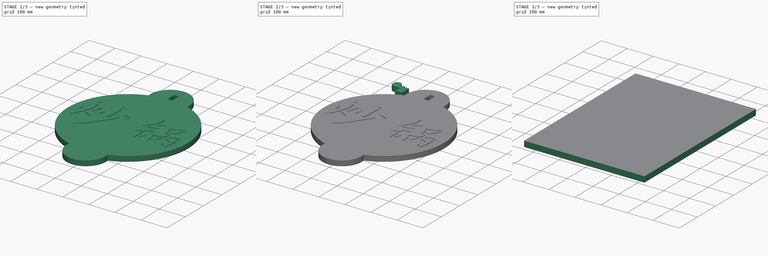
[diagram: build sequence overview — one tinted view per stage of 3, left to right]
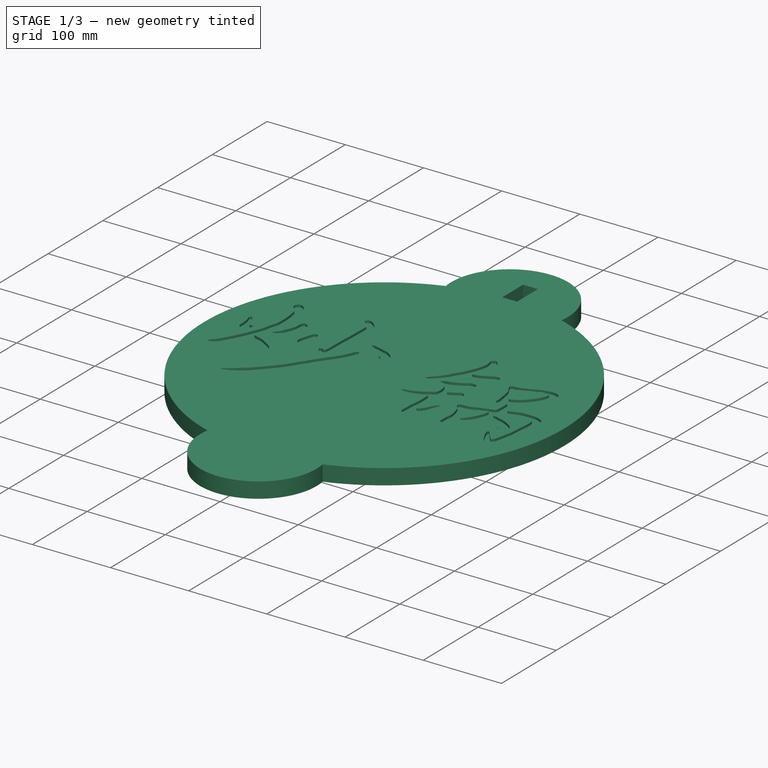
[diagram: stage 1 of 3 — iso view after this stage's code; geometry added in this stage tinted green]
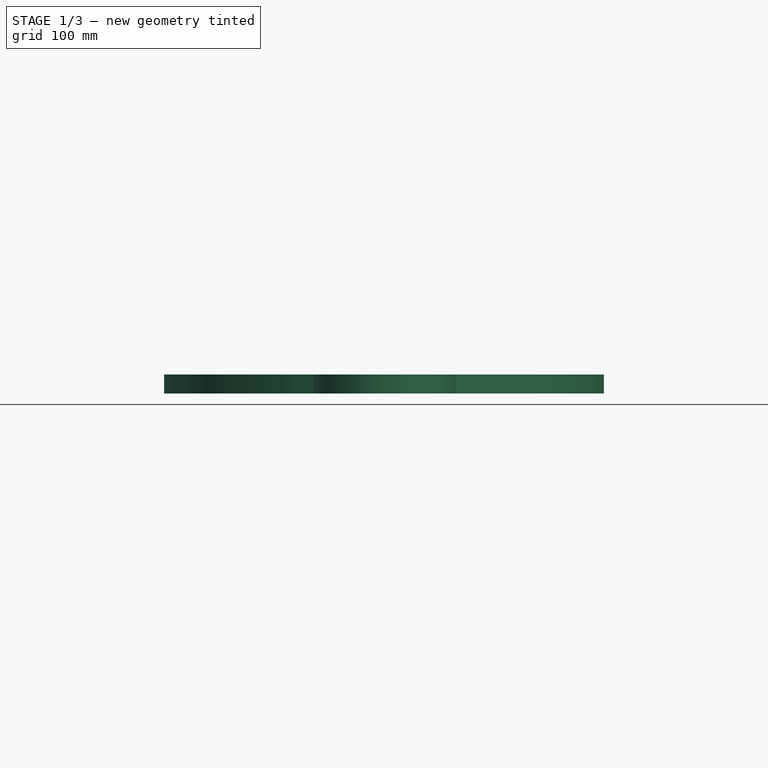
[diagram: stage 1 of 3 — front view after this stage's code; geometry added in this stage tinted green]
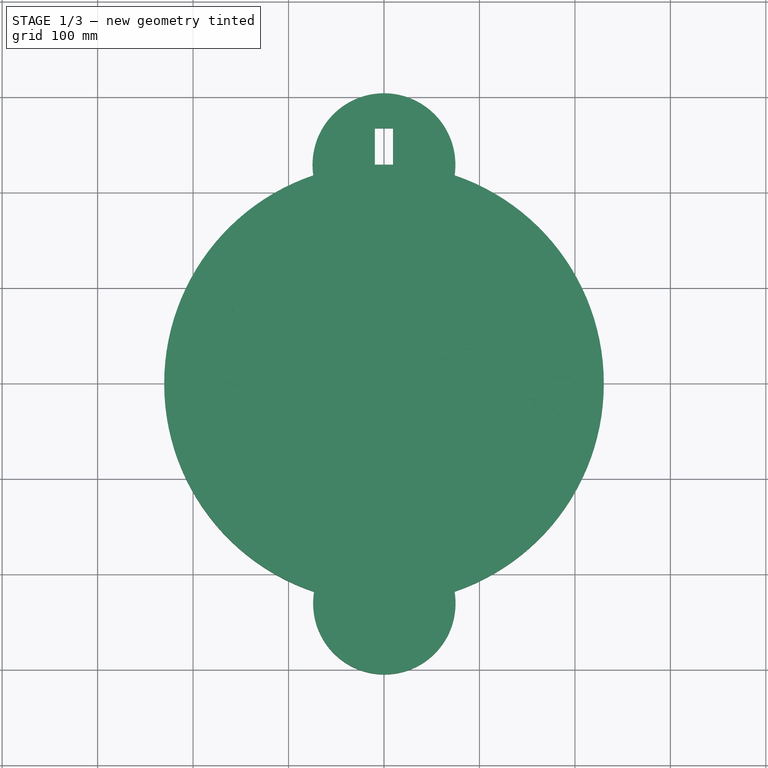
[diagram: stage 1 of 3 — top view after this stage's code; geometry added in this stage tinted green]
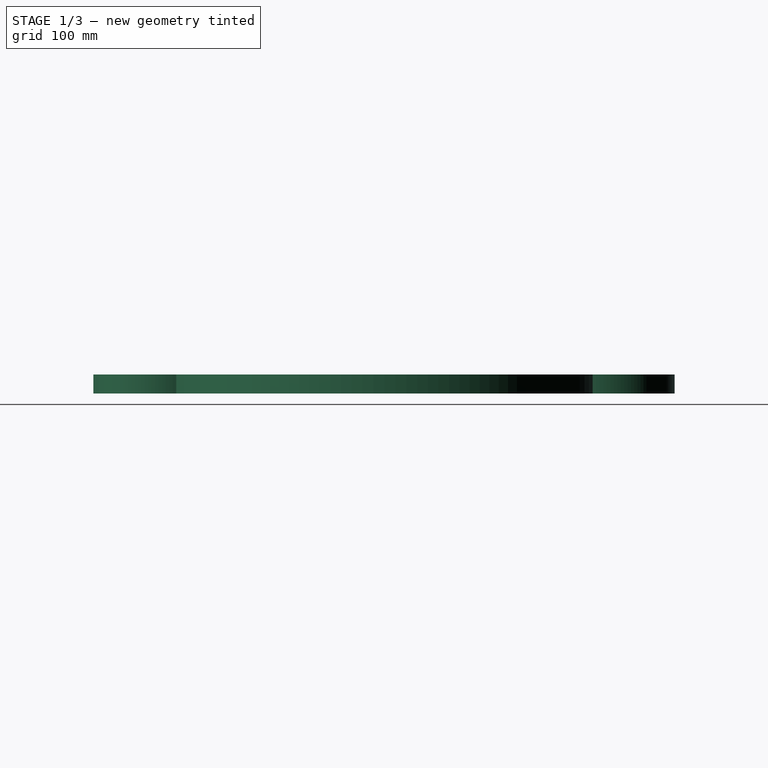
[diagram: stage 1 of 3 — right view after this stage's code; geometry added in this stage tinted green]
FCSTD DOCUMENT  (FreeCAD 0.17R13519 (Git))
Label: wok-holder
License: All rights reserved
LicenseURL: http://en.wikipedia.org/wiki/All_rights_reserved
objects: Path::FeaturePython×9, Part::FeaturePython×4, Sketcher::SketchObject×2, PartDesign::Body×2, App::Part×2, PartDesign::Pad×2, App::FeaturePython×2, Path::FeatureCompoundPython×2, Part::Part2DObjectPython×1, Part::Extrusion×1, Part::Cut×1
note: 19 computed .brp shape members not serialized (recipe doc carries the construction recipe); baked Part::Feature solids carry a one-line shape summary decoded from their .brp

FEATURE [Sketcher::SketchObject] Sketch002  label="Sketch-Body"
  MapMode = 5
  Support = -> [XY_Plane001]
  sketch-geometry (9):
    g0: ArcOfCircle CenterX=0 CenterY=0 CenterZ=0 NormalX=0 NormalY=0 NormalZ=1 AngleXU=0 Radius=230.277 StartAngle=1.89815 EndAngle=4.38855
    g1: LineSegment StartX=-9.56391 StartY=267.272 StartZ=0 EndX=9.48609 EndY=267.272 EndZ=0
    g2: LineSegment StartX=9.48609 StartY=267.272 StartZ=0 EndX=9.48609 EndY=229.172 EndZ=0
    g3: LineSegment StartX=9.48609 StartY=229.172 StartZ=0 EndX=-9.56391 EndY=229.172 EndZ=0
    g4: LineSegment StartX=-9.56391 StartY=229.172 StartZ=0 EndX=-9.56391 EndY=267.272 EndZ=0
    g5: ArcOfCircle CenterX=-0.0389107 CenterY=229.172 CenterZ=0 NormalX=0 NormalY=0 NormalZ=1 AngleXU=0 Radius=74.8347 StartAngle=6.13433 EndAngle=9.57397
    g6: ArcOfCircle CenterX=0.352648 CenterY=-230.277 CenterZ=0 NormalX=0 NormalY=0 NormalZ=1 AngleXU=0 Radius=74.5948 StartAngle=2.98044 EndAngle=6.4474
    g7: ArcOfCircle CenterX=0 CenterY=0 CenterZ=0 NormalX=0 NormalY=0 NormalZ=1 AngleXU=0 Radius=230.277 StartAngle=5.03929 EndAngle=7.52697
    g8: LineSegment StartX=-74.0423 StartY=218.049 StartZ=0 EndX=-74.0423 EndY=218.049 EndZ=0
  constraints (19):
    c: Coincident(g0,g-1)
    c: Coincident(g1,g2)
    c: Coincident(g2,g3)
    c: Coincident(g3,g4)
    c: Coincident(g4,g1)
    c: Horizontal(g1)
    c: Horizontal(g3)
    c: Vertical(g2)
    c: Vertical(g4)
    c: DistanceX(g1,g1) = 19.05
    c: DistanceY(g2,g2) = 38.1
    c: Symmetric(g3,g3,g5)
    c: PointOnObject(g0,g5)
    c: Equal(g0,g7)
    c: Coincident(g0,g7)
    c: Coincident(g6,g7)
    c: Coincident(g5,g7)
    c: Coincident(g8,g0)
    c: Coincident(g5,g8)
FEATURE [Part::Part2DObjectPython] ShapeString  label="ShapeString-炒锅"  # Draft 2D object (typed FeaturePython)
  FontFile = <userpath>/Downloads/Bei An Pen Calligraphy Chinese Font – Simplified Chinese Fonts.ttf
  Placement = pos=(-225,-60,0) rot=(0,0,1;0rad)
  Size = 85
  String = 炒锅
  Tracking = 0
FEATURE [Part::Extrusion] Extrude
  Base = -> ShapeString
  Dir = (0,0,1)
  DirMode = 0
  FaceMakerClass = Part::FaceMakerBullseye
  LengthFwd = -3
  LengthRev = 0
  Solid = true
  Symmetric = false
FEATURE [PartDesign::Body] Body
  Origin = -> Origin001
FEATURE [App::Part] Part  label="Part-Body"
  Group = -> [Body]
  License = CC BY 3.0
  LicenseURL = http://creativecommons.org/licenses/by/3.0/
  Origin = -> Origin
FEATURE [Sketcher::SketchObject] Sketch003  label="Sketch-Hook"
  MapMode = 5
  Support = -> [XY_Plane003]
  sketch-geometry (14):
    g0: LineSegment StartX=-111.417 StartY=268.389 StartZ=0 EndX=-92.3673 EndY=268.389 EndZ=0
    g1: LineSegment StartX=-92.3673 StartY=268.389 StartZ=0 EndX=-92.3673 EndY=230.289 EndZ=0
    g2: LineSegment StartX=-92.3673 StartY=230.289 StartZ=0 EndX=-111.417 EndY=230.289 EndZ=0
    g3: LineSegment StartX=-111.417 StartY=230.289 StartZ=0 EndX=-111.417 EndY=225.245 EndZ=0
    g4: LineSegment StartX=-111.417 StartY=268.389 StartZ=0 EndX=-111.417 EndY=273.354 EndZ=0
    g5: LineSegment StartX=-111.417 StartY=273.354 StartZ=0 EndX=-116.392 EndY=273.354 EndZ=0
    g6: ArcOfCircle CenterX=-121.386 CenterY=273.494 CenterZ=0 NormalX=0 NormalY=0 NormalZ=1 AngleXU=0 Radius=4.99599 StartAngle=3.17049 EndAngle=6.25525
    g7: ArcOfCircle CenterX=-140.714 CenterY=273.657 CenterZ=0 NormalX=0 NormalY=0 NormalZ=1 AngleXU=0 Radius=14.337 StartAngle=6.26174 EndAngle=9.42871
    g8: LineSegment StartX=-155.051 StartY=273.601 StartZ=0 EndX=-155.051 EndY=265.549 EndZ=0
    g9: LineSegment StartX=-111.417 StartY=225.245 StartZ=0 EndX=-116.438 EndY=225.245 EndZ=0
    g10: LineSegment StartX=-116.438 StartY=225.245 StartZ=0 EndX=-116.438 EndY=248.527 EndZ=0
    g11: LineSegment StartX=-125.028 StartY=256.105 StartZ=0 EndX=-142.565 EndY=256.105 EndZ=0
    g12: ArcOfCircle CenterX=-143.148 CenterY=268.309 CenterZ=0 NormalX=0 NormalY=0 NormalZ=1 AngleXU=0 Radius=12.2183 StartAngle=3.36946 EndAngle=4.76019
    g13: ArcOfCircle CenterX=-125.563 CenterY=246.841 CenterZ=0 NormalX=0 NormalY=0 NormalZ=1 AngleXU=0 Radius=9.27931 StartAngle=0.182722 EndAngle=1.51316
  constraints (24):
    c: Coincident(g0,g1)
    c: Coincident(g1,g2)
    c: Horizontal(g0)
    c: Horizontal(g2)
    c: Vertical(g1)
    c: Coincident(g3,g2)
    c: Vertical(g3)
    c: Coincident(g4,g0)
    c: Vertical(g4)
    c: Coincident(g5,g4)
    c: Horizontal(g5)
    c: Coincident(g6,g5)
    c: Coincident(g7,g6)
    c: Coincident(g8,g7)
    c: Vertical(g8)
    c: Coincident(g9,g3)
    c: Horizontal(g9)
    c: Coincident(g10,g9)
    c: Vertical(g10)
    c: Horizontal(g11)
    c: Coincident(g12,g8)
    c: Coincident(g12,g11)
    c: Coincident(g13,g11)
    c: Coincident(g13,g10)
FEATURE [PartDesign::Pad] Pad
  Length = 20
  Length2 = 100
  Profile = -> Sketch002
  Reversed = true
  Type = 0
FEATURE [PartDesign::Body] Body001
  Group = -> [Sketch003,Pad001]
  Origin = -> Origin003
  Tip = -> Pad001
FEATURE [App::Part] Part001  label="Part-Hook"
  Group = -> [Body001]
  License = CC BY 3.0
  LicenseURL = http://creativecommons.org/licenses/by/3.0/
  Origin = -> Origin002
FEATURE [Part::Cut] Cut  label="Body Cut"
  Base = -> Pad
  Tool = -> Extrude
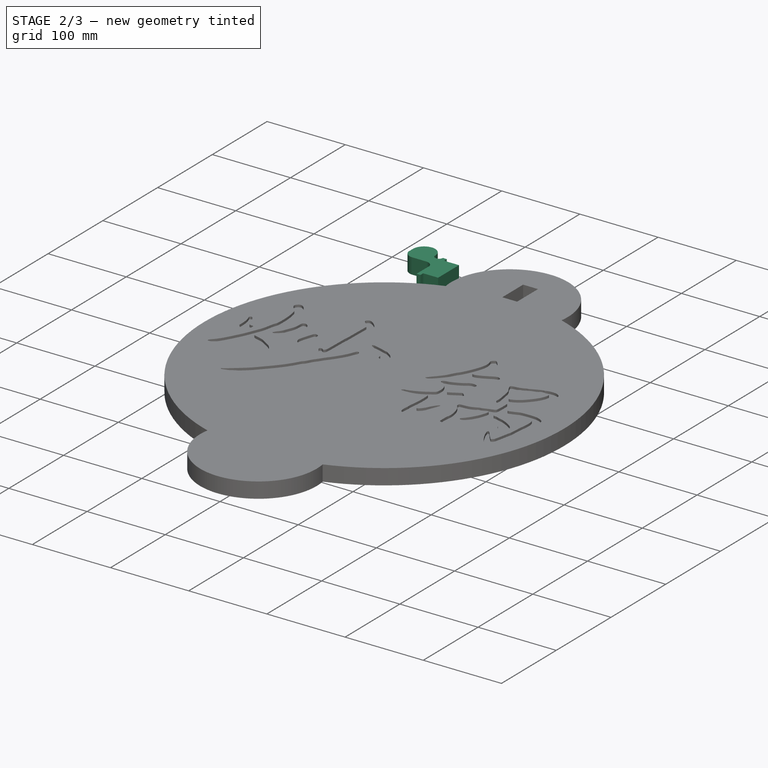
[diagram: stage 2 of 3 — iso view after this stage's code; geometry added in this stage tinted green]
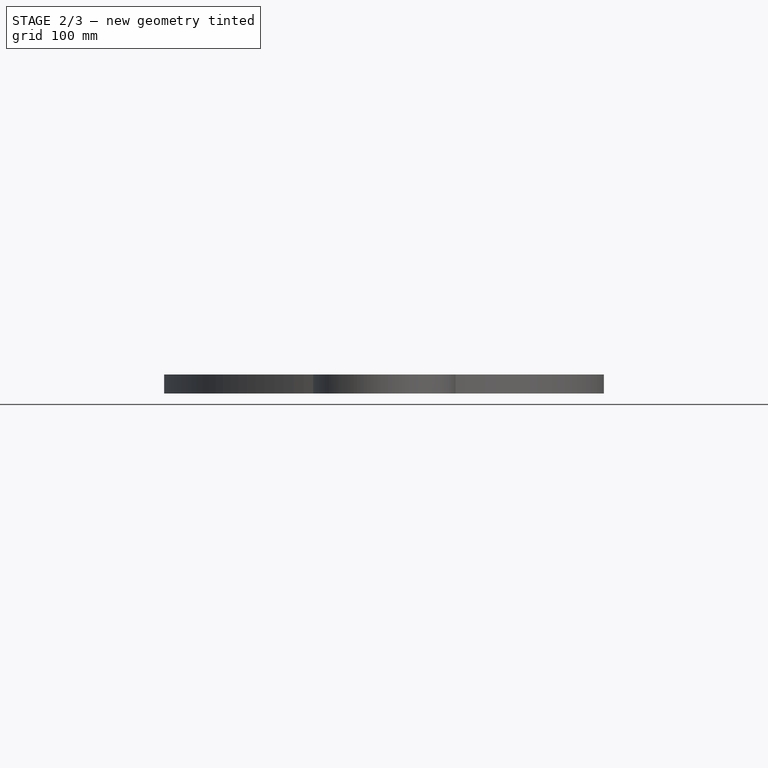
[diagram: stage 2 of 3 — front view after this stage's code; geometry added in this stage tinted green]
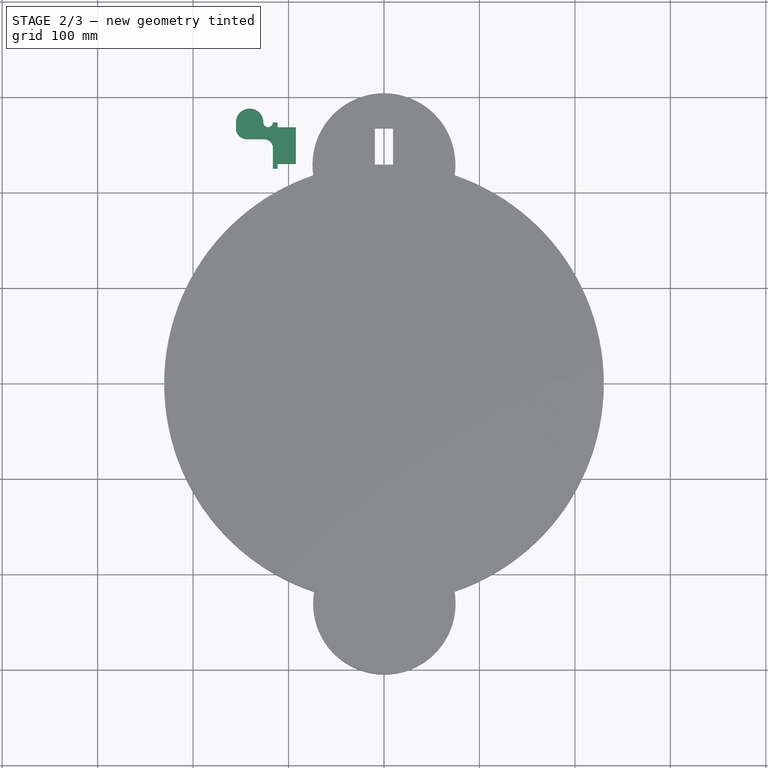
[diagram: stage 2 of 3 — top view after this stage's code; geometry added in this stage tinted green]
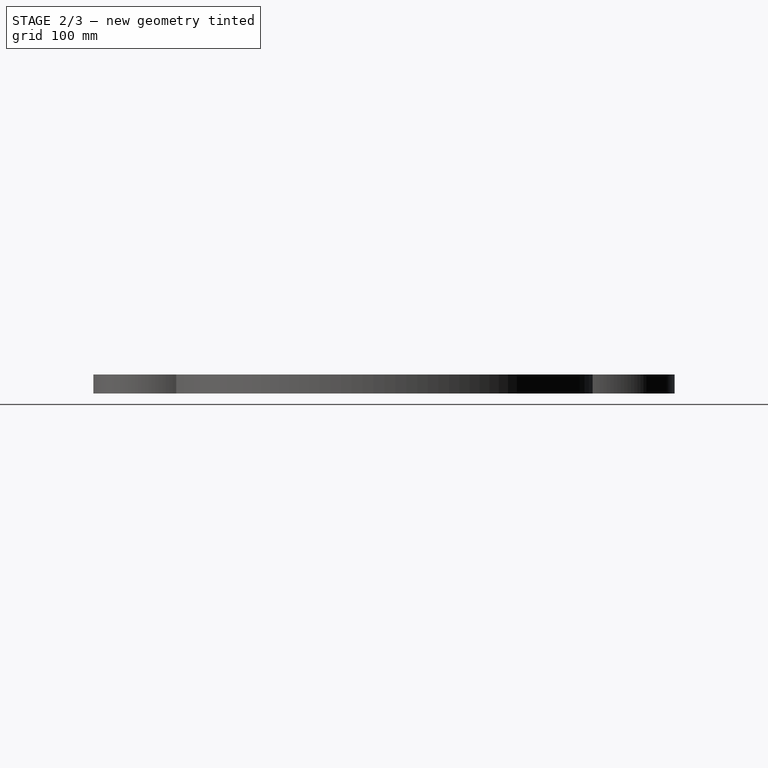
[diagram: stage 2 of 3 — right view after this stage's code; geometry added in this stage tinted green]
FEATURE [PartDesign::Pad] Pad001
  Length = 20
  Length2 = 100
  Profile = -> Sketch003
  Reversed = true
  Type = 0
FEATURE [App::FeaturePython] SetupSheet001  # Path/CAM operation (typed FeaturePython)
  ClearanceHeightExpression = StartDepth+SetupSheet001.ClearanceHeightOffset
  ClearanceHeightOffset = 5
  FinalDepthExpression = OpFinalDepth
  HorizRapid = 150
  SafeHeightExpression = StartDepth+SetupSheet001.SafeHeightOffset
  SafeHeightOffset = 3
  StartDepthExpression = OpStartDepth
  StepDownExpression = OpToolDiameter
  VertRapid = 150
FEATURE [Part::FeaturePython] Clone001  label="Base-Body Cut"  # Draft clone (typed FeaturePython)
  AttacherType = Attacher::AttachEngine3D
  Fuse = false
  Objects = -> [Cut]
  PathResource = Base
  Scale = (1,1,1)
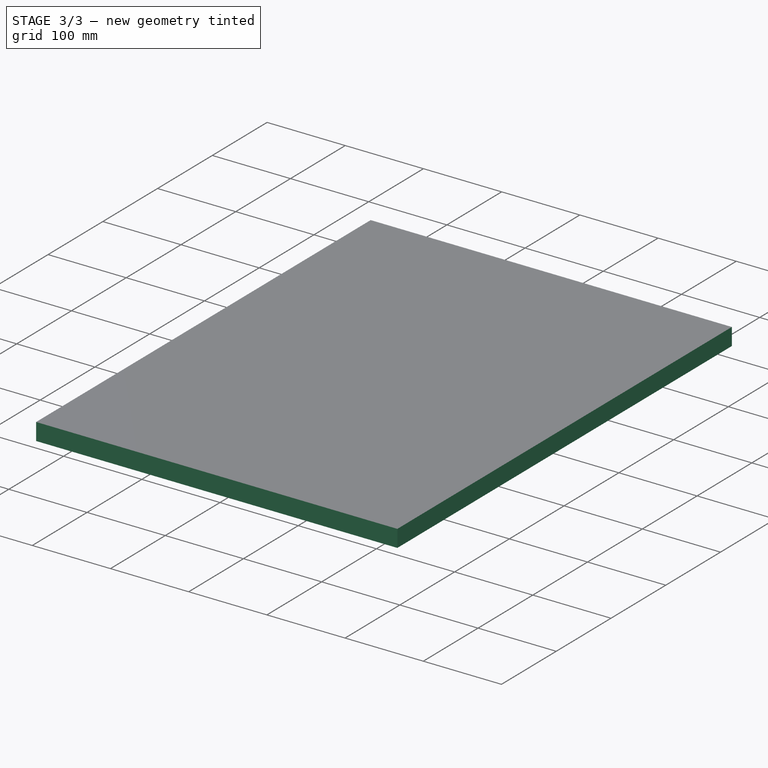
[diagram: stage 3 of 3 — iso view after this stage's code; geometry added in this stage tinted green]
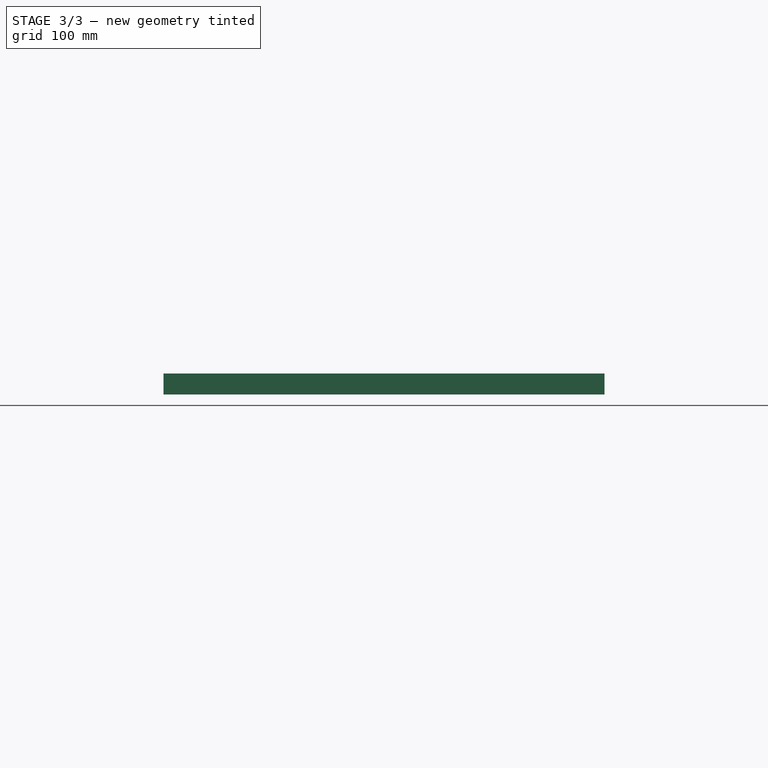
[diagram: stage 3 of 3 — front view after this stage's code; geometry added in this stage tinted green]
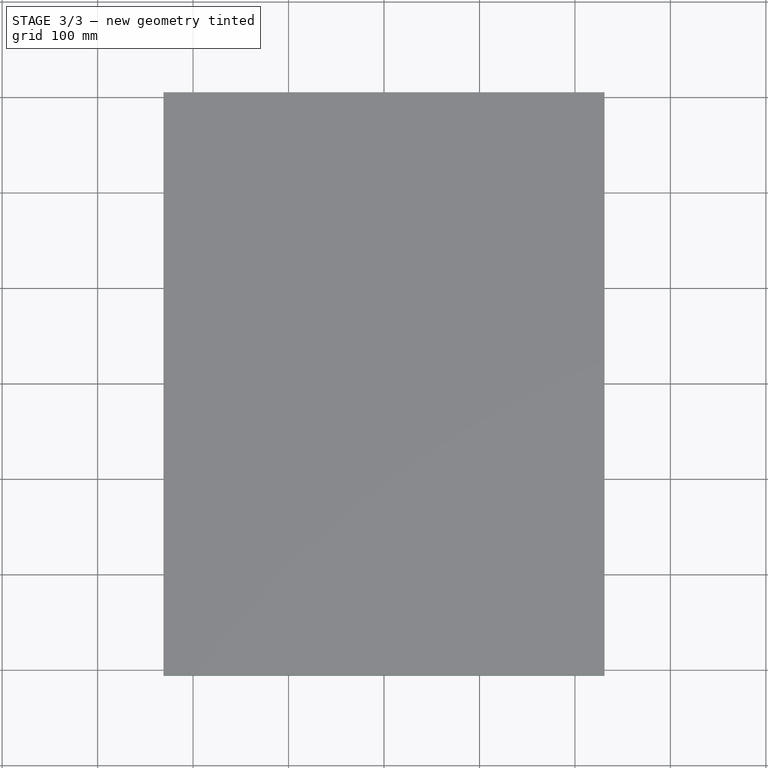
[diagram: stage 3 of 3 — top view after this stage's code; geometry added in this stage tinted green]
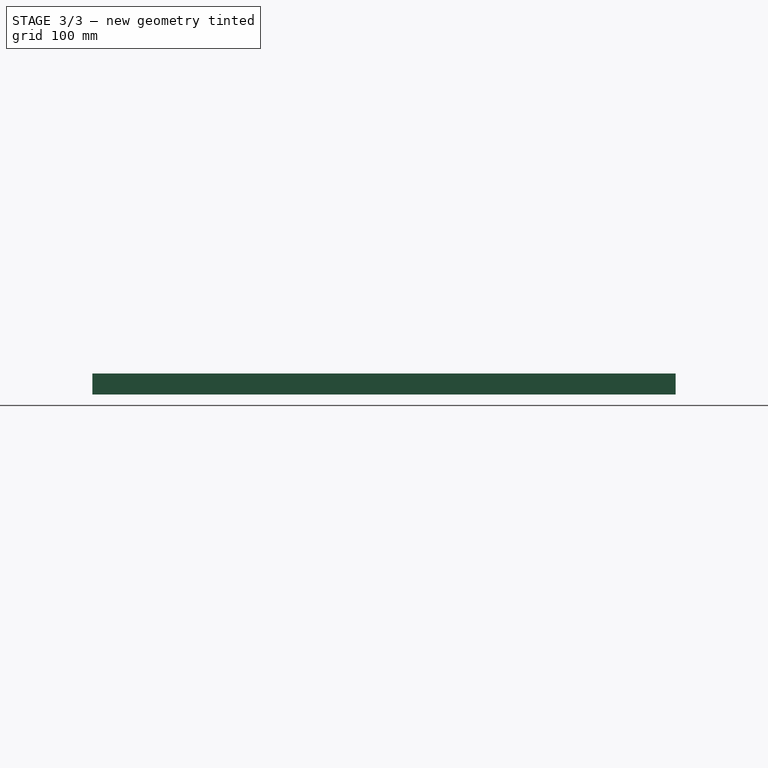
[diagram: stage 3 of 3 — right view after this stage's code; geometry added in this stage tinted green]
FEATURE [Part::FeaturePython] Stock001  # WARN: FeaturePython — macro-defined, semantics opaque (R4)
  Base = -> Cut
  ExtXneg = 1
  ExtXpos = 1
  ExtYneg = 1
  ExtYpos = 1
  ExtZneg = 1
  ExtZpos = 1
  StockType = FromBase
FEATURE [Path::FeaturePython] T1__1_4__Router_Bit001  label="T1: 1/4" Router Bit001"  # Path/CAM operation (typed FeaturePython)
  HorizFeed = 100
  HorizRapid = 150
  SpindleDir = 0
  SpindleSpeed = 1800
  ToolNumber = 1
  VertFeed = 100
  VertRapid = 150
  expr: HorizRapid = SetupSheet001.HorizRapid
  expr: VertRapid = SetupSheet001.VertRapid
FEATURE [Path::FeaturePython] Contour001  # Path/CAM operation (typed FeaturePython)
  Active = true
  AreaParams:
    OpenMode = 0
    Angle = 45.0
    MinArcPoints = 4
    Coplanar = 2
    Tolerance = 1e-07
    CleanDistance = 0.0
    PocketExtraOffset = 0.0
    RoundPrecision = 0.0
    AngleShift = 0.0
    SubjectFill = 0
    PocketMode = 0
    Simplify = False
    SectionTolerance = 1e-06
    MaxArcPoints = 100
    Offset = 3.175
    Accuracy = 0.01
    PocketStepover = 0.0
    ClipFill = 0
    ToolRadius = 1.0
    Outline = False
    ClipperScale = 10000000.0
    FromCenter = False
    Explode = False
    EndType = 0
    Shift = 0.0
    ExtraPass = 0
    Project = False
    JoinType = 0
    Thicken = False
    Stepdown = 1.0
    SectionMode = 2
    MiterLimit = 2.0
    Deflection = 0.01
    Reorient = True
    FitArcs = True
    SectionCount = -1
    SectionOffset = 0.0
    Stepover = 0.0
    Unit = 1.0
    Fill = 0
  ClearanceHeight = 6
  Direction = 0
  FinalDepth = -21
  JoinType = 0
  MiterLimit = 0.1
  OffsetExtra = 0
  OpFinalDepth = -21
  OpStartDepth = 1
  OpToolDiameter = 6.35
  PathParams = {'resume_height': 4.0, 'feedrate': 100.0, 'verbose': True, 'orientation': 1, 'return_end': True, 'preamble': False, 'retraction': 6.0, 'feedrate_v': 100.0}
  SafeHeight = 4
  Side = 0
  StartDepth = 1
  StartPoint = (0,0,0)
  StepDown = 6.35
  ToolController = -> T1__1_4__Router_Bit001
  UseComp = true
  UseStartPoint = false
  expr: ClearanceHeight = StartDepth + SetupSheet001.ClearanceHeightOffset
  expr: SafeHeight = StartDepth + SetupSheet001.SafeHeightOffset
  expr: StepDown = OpToolDiameter
  expr: FinalDepth = OpFinalDepth
  expr: StartDepth = OpStartDepth
FEATURE [Part::FeaturePython] Stock  # WARN: FeaturePython — macro-defined, semantics opaque (R4)
  Base = -> Part001
  ExtXneg = 1
  ExtXpos = 1
  ExtYneg = 1
  ExtYpos = 1
  ExtZneg = 1
  ExtZpos = 1
  StockType = FromBase
FEATURE [Part::FeaturePython] Clone  label="Base-Part-Hook"  # Draft clone (typed FeaturePython)
  AttacherType = Attacher::AttachEngine3D
  Fuse = false
  Objects = -> [Part001]
  PathResource = Base
  Scale = (1,1,1)
FEATURE [Path::FeaturePython] T1__1_4__Router_Bit  label="T1: 1/4" Router Bit"  # Path/CAM operation (typed FeaturePython)
  HorizFeed = 100
  HorizRapid = 150
  SpindleDir = 0
  SpindleSpeed = 1800
  ToolNumber = 1
  VertFeed = 100
  VertRapid = 150
  expr: HorizRapid = SetupSheet.HorizRapid
  expr: VertRapid = SetupSheet.VertRapid
FEATURE [App::FeaturePython] SetupSheet  # Path/CAM operation (typed FeaturePython)
  ClearanceHeightExpression = StartDepth+SetupSheet.ClearanceHeightOffset
  ClearanceHeightOffset = 5
  FinalDepthExpression = OpFinalDepth
  HorizRapid = 150
  SafeHeightExpression = StartDepth+SetupSheet.SafeHeightOffset
  SafeHeightOffset = 3
  StartDepthExpression = OpStartDepth
  StepDownExpression = OpToolDiameter
  VertRapid = 150
FEATURE [Path::FeaturePython] Profile_Edges  # Path/CAM operation (typed FeaturePython)
  Active = true
  AreaParams:
    OpenMode = 0
    Angle = 45.0
    MinArcPoints = 4
    Coplanar = 0
    Tolerance = 1e-07
    CleanDistance = 0.0
    PocketExtraOffset = 0.0
    RoundPrecision = 0.0
    AngleShift = 0.0
    SubjectFill = 0
    PocketMode = 0
    Simplify = False
    SectionTolerance = 1e-06
    MaxArcPoints = 100
    Offset = -3.175
    Accuracy = 0.01
    PocketStepover = 0.0
    ClipFill = 0
    ToolRadius = 1.0
    Outline = False
    ClipperScale = 10000000.0
    FromCenter = False
    Explode = False
    EndType = 0
    Shift = 0.0
    ExtraPass = 0
    Project = False
    JoinType = 0
    Thicken = False
    Stepdown = 1.0
    SectionMode = 2
    MiterLimit = 2.0
    Deflection = 0.01
    Reorient = True
    FitArcs = True
    SectionCount = -1
    SectionOffset = 0.0
    Stepover = 0.0
    Unit = 1.0
    Fill = 0
  Base = -> [Clone001]
  ClearanceHeight = 6
  Direction = 0
  FinalDepth = -20
  JoinType = 0
  MiterLimit = 0.1
  OffsetExtra = 0
  OpFinalDepth = -20
  OpStartDepth = 1
  OpToolDiameter = 6.35
  PathParams = {'resume_height': 4.0, 'feedrate': 100.0, 'verbose': True, 'orientation': 1, 'return_end': True, 'preamble': False, 'retraction': 6.0, 'feedrate_v': 100.0}
  SafeHeight = 4
  Side = 1
  StartDepth = 1
  StartPoint = (0,0,0)
  StepDown = 6.35
  ToolController = -> T1__1_4__Router_Bit001
  UseComp = true
  UseStartPoint = false
  expr: ClearanceHeight = StartDepth + SetupSheet001.ClearanceHeightOffset
  expr: SafeHeight = StartDepth + SetupSheet001.SafeHeightOffset
  expr: StepDown = OpToolDiameter
  expr: FinalDepth = OpFinalDepth
  expr: StartDepth = OpStartDepth
FEATURE [Path::FeaturePython] T2__1_8__Detail_Bit  label="T2: 1/8" Detail Bit"  # Path/CAM operation (typed FeaturePython)
  HorizFeed = 80
  HorizRapid = 150
  SpindleDir = 0
  SpindleSpeed = 1800
  ToolNumber = 2
  VertFeed = 80
  VertRapid = 150
  expr: HorizRapid = SetupSheet001.HorizRapid
  expr: VertRapid = SetupSheet001.VertRapid
FEATURE [Path::FeaturePython] Pocket_Shape  # Path/CAM operation (typed FeaturePython)
  Active = true
  AreaParams:
    OpenMode = 0
    Angle = 45.0
    MinArcPoints = 4
    Coplanar = 0
    Tolerance = 1e-07
    CleanDistance = 0.0
    PocketExtraOffset = 0.0
    RoundPrecision = 0.0
    AngleShift = 0.0
    SubjectFill = 0
    PocketMode = 3
    Simplify = False
    SectionTolerance = 1e-06
    MaxArcPoints = 100
    Offset = 0.0
    Accuracy = 0.01
    PocketStepover = 3.17
    ClipFill = 0
    ToolRadius = 1.585
    Outline = False
    ClipperScale = 10000000.0
    FromCenter = True
    Explode = False
    EndType = 0
    Shift = 0.0
    ExtraPass = 0
    Project = False
    JoinType = 0
    Thicken = False
    Stepdown = 1.0
    SectionMode = 2
    MiterLimit = 2.0
    Deflection = 0.01
    Reorient = True
    FitArcs = True
    SectionCount = -1
    SectionOffset = 0.0
    Stepover = 0.0
    Unit = 1.0
    Fill = 0
  Base = -> [Clone001]
  ClearanceHeight = 6
  CutMode = 0
  ExtraOffset = 0
  FinalDepth = -3
  FinishDepth = 0
  KeepToolDown = false
  MinTravel = false
  OffsetPattern = 2
  OpFinalDepth = -3
  OpStartDepth = 1
  OpToolDiameter = 3.17
  PathParams = {'resume_height': 4.0, 'feedrate': 80.0, 'verbose': True, 'orientation': 1, 'return_end': True, 'preamble': False, 'retraction': 6.0, 'feedrate_v': 80.0}
  SafeHeight = 4
  StartAt = 0
  StartDepth = 1
  StartPoint = (0,0,0)
  StepDown = 3.17
  StepOver = 100
  ToolController = -> T2__1_8__Detail_Bit
  UseStartPoint = false
  ZigZagAngle = 45
  expr: ClearanceHeight = StartDepth + SetupSheet001.ClearanceHeightOffset
  expr: SafeHeight = StartDepth + SetupSheet001.SafeHeightOffset
  expr: StepDown = OpToolDiameter
  expr: FinalDepth = OpFinalDepth
  expr: StartDepth = OpStartDepth
FEATURE [Path::FeatureCompoundPython] Operations001  # Path/CAM operation (typed FeaturePython)
  Group = -> [Contour001,Profile_Edges,Pocket_Shape]
  UsePlacements = false
FEATURE [Path::FeaturePython] Job001  label="BodyJob"  # Path/CAM operation (typed FeaturePython)
  Base = -> Clone001
  GeometryTolerance = 0.01
  Operations = -> Operations001
  PostProcessor = 6
  PostProcessorOutputFile = <userpath>/Documents/CNC/wok-holder.cnc
  SetupSheet = -> SetupSheet001
  Stock = -> Stock001
  ToolController = -> [T1__1_4__Router_Bit001,T2__1_8__Detail_Bit]
FEATURE [Path::FeaturePython] Contour  # Path/CAM operation (typed FeaturePython)
  Active = true
  AreaParams:
    OpenMode = 0
    Angle = 45.0
    MinArcPoints = 4
    Coplanar = 2
    Tolerance = 1e-07
    CleanDistance = 0.0
    PocketExtraOffset = 0.0
    RoundPrecision = 0.0
    AngleShift = 0.0
    SubjectFill = 0
    PocketMode = 0
    Simplify = False
    SectionTolerance = 1e-06
    MaxArcPoints = 100
    Offset = 3.175
    Accuracy = 0.01
    PocketStepover = 0.0
    ClipFill = 0
    ToolRadius = 1.0
    Outline = False
    ClipperScale = 10000000.0
    FromCenter = False
    Explode = False
    EndType = 0
    Shift = 0.0
    ExtraPass = 0
    Project = False
    JoinType = 0
    Thicken = False
    Stepdown = 1.0
    SectionMode = 2
    MiterLimit = 2.0
    Deflection = 0.01
    Reorient = True
    FitArcs = True
    SectionCount = -1
    SectionOffset = 0.0
    Stepover = 0.0
    Unit = 1.0
    Fill = 0
  ClearanceHeight = 6
  Direction = 0
  FinalDepth = -21
  JoinType = 0
  MiterLimit = 0.1
  OffsetExtra = 0
  OpFinalDepth = -21
  OpStartDepth = 1
  OpToolDiameter = 6.35
  PathParams = {'resume_height': 4.0, 'feedrate': 100.0, 'verbose': True, 'orientation': 1, 'return_end': True, 'preamble': False, 'retraction': 6.0, 'feedrate_v': 100.0}
  SafeHeight = 4
  Side = 0
  StartDepth = 1
  StartPoint = (0,0,0)
  StepDown = 6.35
  ToolController = -> T1__1_4__Router_Bit
  UseComp = true
  UseStartPoint = false
  expr: ClearanceHeight = StartDepth + SetupSheet.ClearanceHeightOffset
  expr: SafeHeight = StartDepth + SetupSheet.SafeHeightOffset
  expr: StepDown = OpToolDiameter
  expr: FinalDepth = OpFinalDepth
  expr: StartDepth = OpStartDepth
FEATURE [Path::FeatureCompoundPython] Operations  # Path/CAM operation (typed FeaturePython)
  Group = -> [Contour]
  UsePlacements = false
FEATURE [Path::FeaturePython] Job  label="HookJob"  # Path/CAM operation (typed FeaturePython)
  Base = -> Clone
  GeometryTolerance = 0.01
  Operations = -> Operations
  PostProcessor = 6
  SetupSheet = -> SetupSheet
  Stock = -> Stock
  ToolController = -> [T1__1_4__Router_Bit]
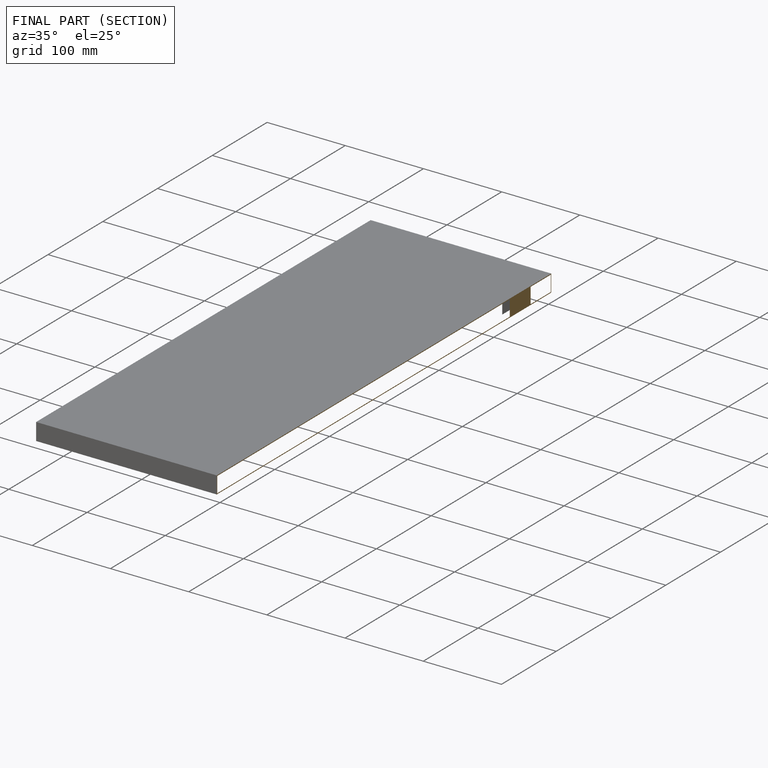
[diagram: finished part — half-section view (interior)]
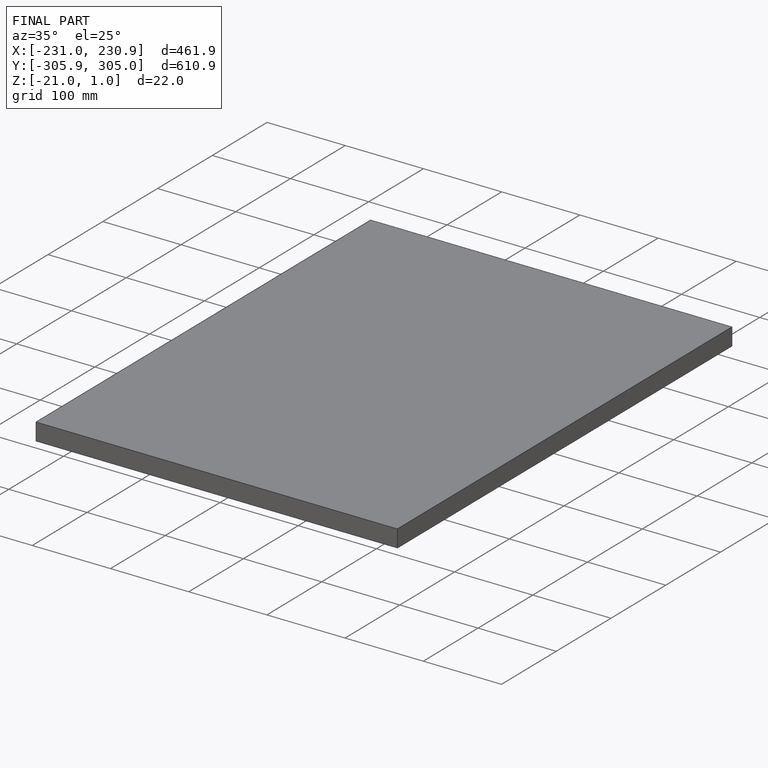
[diagram: finished part — iso view with bounding-box wireframe]
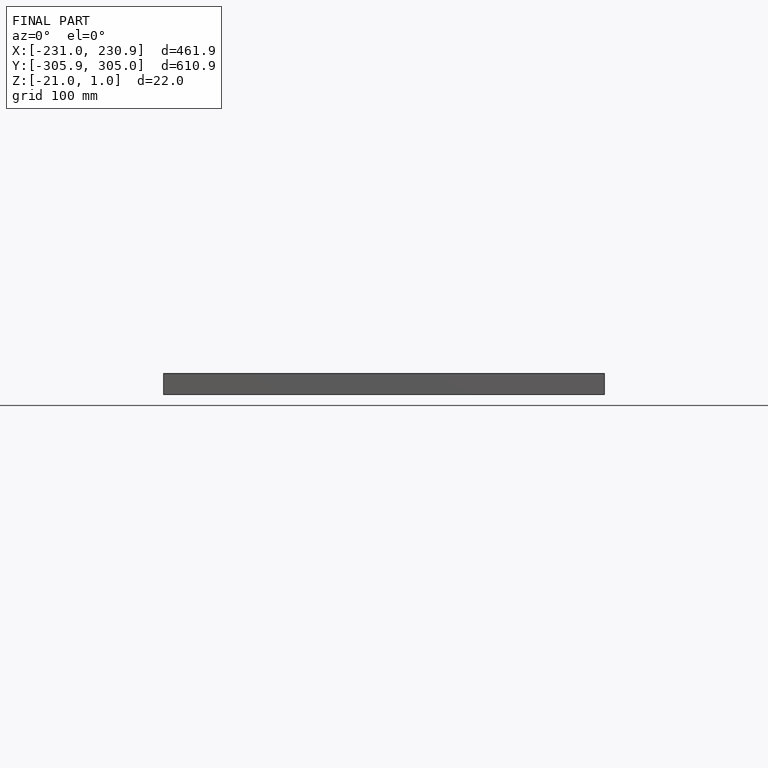
[diagram: finished part — front view with bounding-box wireframe]
